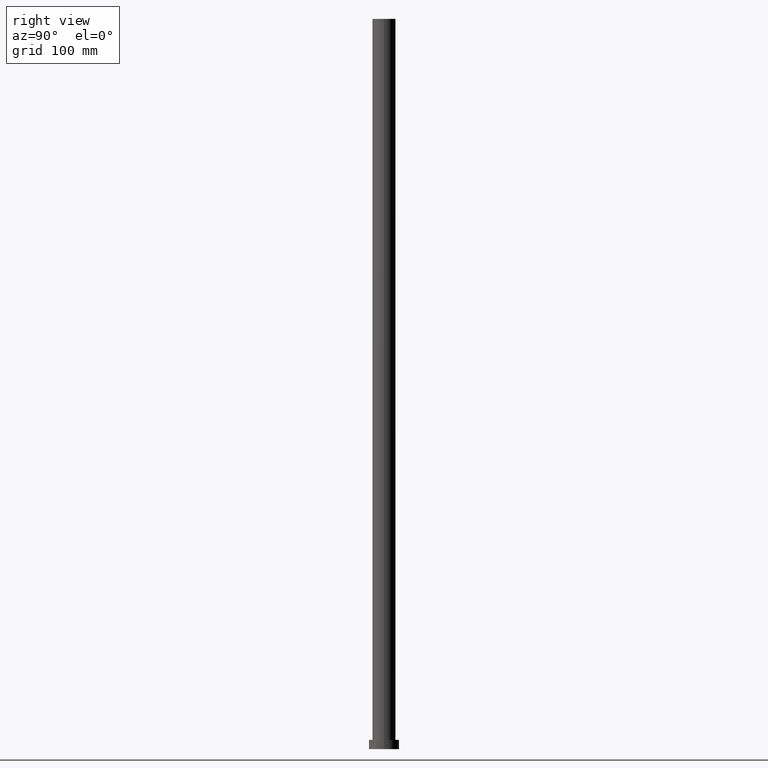
[diagram: clean part render]
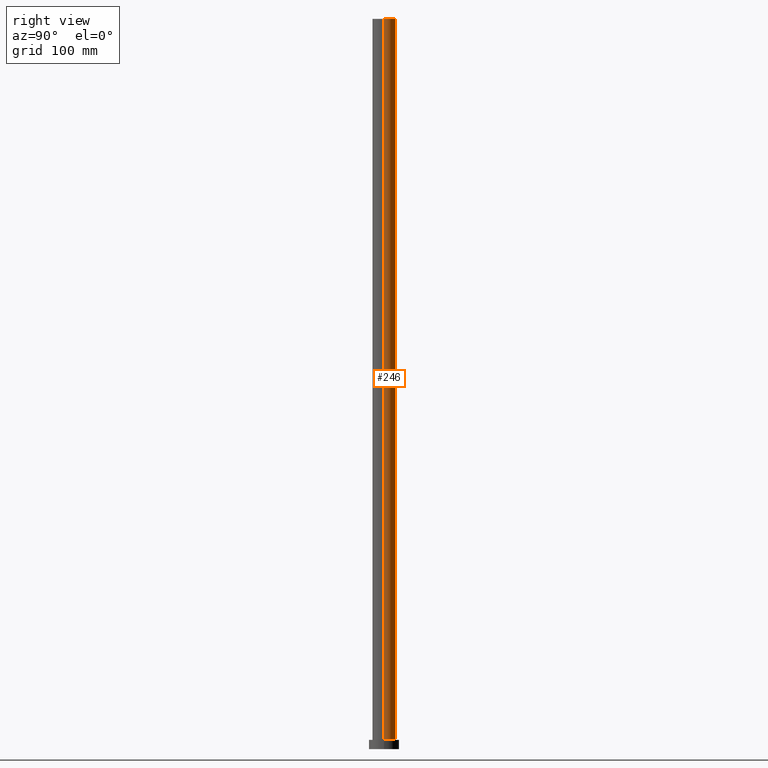
[diagram: same view with one face highlighted and labeled with its STEP entity id]
A machine part, right view. The second image highlights one B-rep face of the part: STEP entity #246.
In plain terms, the highlighted cylindrical surface (edge-blend (fillet) strip) has radius 10 mm, axis along (-0, -0, -1).
Its self-contained STEP definition (entity closure, byte-faithful):
#3 = EDGE_CURVE ( 'NONE', #156, #189, #159, .T. ) ;
#20 = ORIENTED_EDGE ( 'NONE', *, *, #57, .F. ) ;
#26 = CARTESIAN_POINT ( 'NONE',  ( 0.000000000000000000, 0.000000000000000000, 630.0000000000000000 ) ) ;
#31 = CARTESIAN_POINT ( 'NONE',  ( -10.00000000000000000, 0.000000000000000000, 8.000000000000000000 ) ) ;
#35 = DIRECTION ( 'NONE',  ( -0.000000000000000000, -0.000000000000000000, -1.000000000000000000 ) ) ;
#45 = CARTESIAN_POINT ( 'NONE',  ( -10.00000000000000000, 0.000000000000000000, 630.0000000000000000 ) ) ;
#52 = DIRECTION ( 'NONE',  ( -0.000000000000000000, -0.000000000000000000, -1.000000000000000000 ) ) ;
#57 = EDGE_CURVE ( 'NONE', #254, #136, #95, .T. ) ;
#58 = ORIENTED_EDGE ( 'NONE', *, *, #3, .T. ) ;
#65 = AXIS2_PLACEMENT_3D ( 'NONE', #26, #102, #142 ) ;
#67 = CYLINDRICAL_SURFACE ( 'NONE', #65, 10.00000000000000000 ) ;
#72 = DIRECTION ( 'NONE',  ( 0.000000000000000000, 0.000000000000000000, 1.000000000000000000 ) ) ;
#83 = AXIS2_PLACEMENT_3D ( 'NONE', #122, #123, #140 ) ;
#85 = FACE_OUTER_BOUND ( 'NONE', #177, .T. ) ;
#95 = CIRCLE ( 'NONE', #83, 10.00000000000000000 ) ;
#99 = ORIENTED_EDGE ( 'NONE', *, *, #166, .T. ) ;
#102 = DIRECTION ( 'NONE',  ( -0.000000000000000000, -0.000000000000000000, -1.000000000000000000 ) ) ;
#122 = CARTESIAN_POINT ( 'NONE',  ( 0.000000000000000000, 0.000000000000000000, 630.0000000000000000 ) ) ;
#123 = DIRECTION ( 'NONE',  ( 0.000000000000000000, 0.000000000000000000, 1.000000000000000000 ) ) ;
#132 = VECTOR ( 'NONE', #52, 1000.000000000000000 ) ;
#136 = VERTEX_POINT ( 'NONE', #145 ) ;
#137 = ORIENTED_EDGE ( 'NONE', *, *, #172, .F. ) ;
#140 = DIRECTION ( 'NONE',  ( 1.000000000000000000, 0.000000000000000000, 0.000000000000000000 ) ) ;
#142 = DIRECTION ( 'NONE',  ( -1.000000000000000000, 0.000000000000000000, 0.000000000000000000 ) ) ;
#144 = CARTESIAN_POINT ( 'NONE',  ( 10.00000000000000000, 1.224646799147353256E-15, 630.0000000000000000 ) ) ;
#145 = CARTESIAN_POINT ( 'NONE',  ( -10.00000000000000000, 0.000000000000000000, 630.0000000000000000 ) ) ;
#147 = LINE ( 'NONE', #144, #243 ) ;
#156 = VERTEX_POINT ( 'NONE', #164 ) ;
#159 = CIRCLE ( 'NONE', #232, 10.00000000000000000 ) ;
#164 = CARTESIAN_POINT ( 'NONE',  ( 10.00000000000000000, 1.224646799147353256E-15, 8.000000000000000000 ) ) ;
#166 = EDGE_CURVE ( 'NONE', #254, #156, #147, .T. ) ;
#172 = EDGE_CURVE ( 'NONE', #136, #189, #217, .T. ) ;
#177 = EDGE_LOOP ( 'NONE', ( #20, #99, #58, #137 ) ) ;
#189 = VERTEX_POINT ( 'NONE', #31 ) ;
#201 = CARTESIAN_POINT ( 'NONE',  ( 10.00000000000000000, 1.224646799147353256E-15, 630.0000000000000000 ) ) ;
#213 = CARTESIAN_POINT ( 'NONE',  ( 0.000000000000000000, 0.000000000000000000, 8.000000000000000000 ) ) ;
#217 = LINE ( 'NONE', #45, #132 ) ;
#232 = AXIS2_PLACEMENT_3D ( 'NONE', #213, #72, #238 ) ;
#238 = DIRECTION ( 'NONE',  ( 1.000000000000000000, 0.000000000000000000, 0.000000000000000000 ) ) ;
#243 = VECTOR ( 'NONE', #35, 1000.000000000000000 ) ;
#246 = ADVANCED_FACE ( 'NONE', ( #85 ), #67, .T. ) ;
#254 = VERTEX_POINT ( 'NONE', #201 ) ;